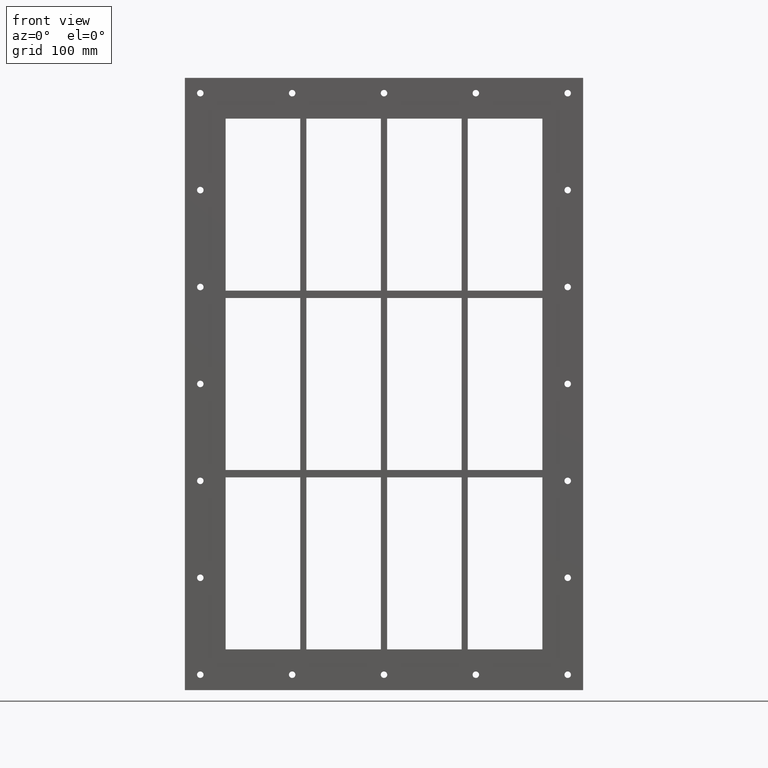
[diagram: clean part render]
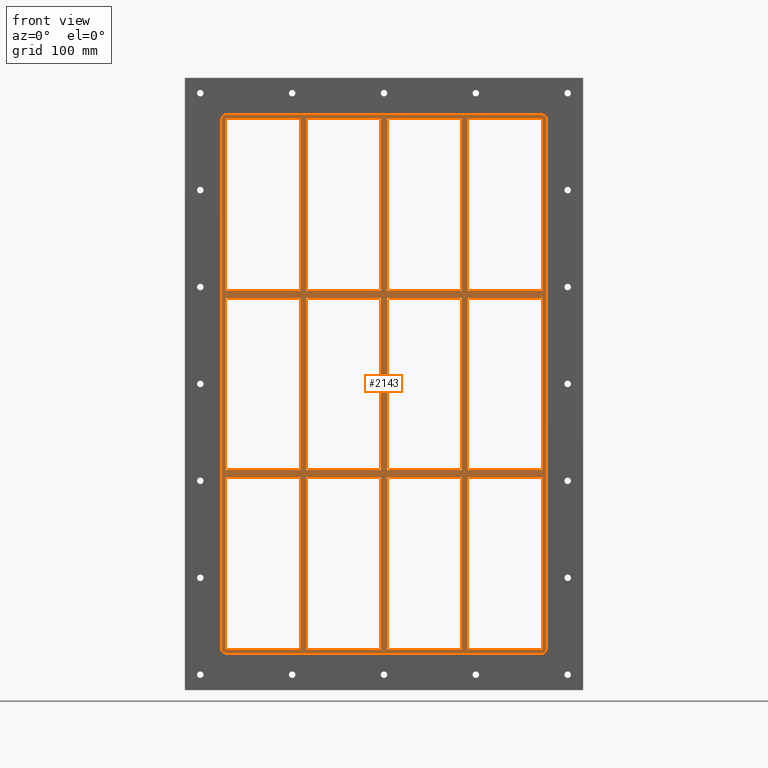
[diagram: same view with one face highlighted and labeled with its STEP entity id]
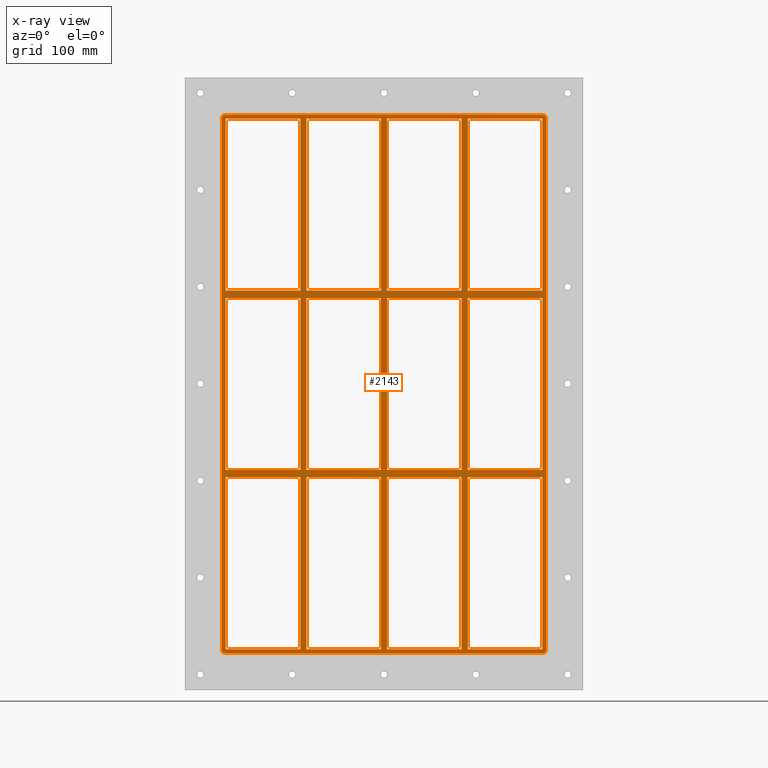
[diagram: x-ray of the same camera — body ghosted, the highlighted face saturated]
A machine part, front view. The second image highlights one B-rep face of the part: STEP entity #2143.
The next image is the same camera in x-ray: the body ghosted, the highlighted face saturated — about 0% of this face is hidden behind the body in this view.
In plain terms, the highlighted planar face has unit normal (0, 1, 0).
Its self-contained STEP definition (entity closure, byte-faithful):
#633=CARTESIAN_POINT('',(-135.50000000000213,-3.0,138.99999999998983));
#634=VERTEX_POINT('',#633);
#643=CARTESIAN_POINT('',(-256.00000000000045,-3.0,138.99999999998983));
#644=VERTEX_POINT('',#643);
#645=CARTESIAN_POINT('',(-135.5000000000021,-3.0,138.9999999999898));
#646=DIRECTION('',(-1.0,0.0,0.0));
#647=VECTOR('',#646,120.49999999999835);
#648=LINE('',#645,#647);
#649=EDGE_CURVE('',#634,#644,#648,.T.);
#673=CARTESIAN_POINT('',(-5.000000000002132,-3.0,138.99999999998983));
#674=VERTEX_POINT('',#673);
#683=CARTESIAN_POINT('',(-125.49999999999272,-3.0,138.99999999998983));
#684=VERTEX_POINT('',#683);
#685=CARTESIAN_POINT('',(-5.00000000000216,-3.0,138.9999999999898));
#686=DIRECTION('',(-1.0,0.0,0.0));
#687=VECTOR('',#686,120.49999999999056);
#688=LINE('',#685,#687);
#689=EDGE_CURVE('',#674,#684,#688,.T.);
#715=CARTESIAN_POINT('',(135.50000000000728,-3.0,138.9999999999898));
#716=VERTEX_POINT('',#715);
#731=CARTESIAN_POINT('',(256.00000000000364,-3.0,138.9999999999898));
#732=VERTEX_POINT('',#731);
#739=CARTESIAN_POINT('',(256.00000000000364,-3.0,138.9999999999898));
#740=DIRECTION('',(-1.0,0.0,0.0));
#741=VECTOR('',#740,120.49999999999636);
#742=LINE('',#739,#741);
#743=EDGE_CURVE('',#732,#716,#742,.T.);
#753=CARTESIAN_POINT('',(125.4999999999979,-3.0,138.9999999999898));
#754=VERTEX_POINT('',#753);
#763=CARTESIAN_POINT('',(5.000000000007283,-3.0,138.9999999999898));
#764=VERTEX_POINT('',#763);
#765=CARTESIAN_POINT('',(125.4999999999979,-3.0,138.9999999999898));
#766=DIRECTION('',(-1.0,0.0,0.0));
#767=VECTOR('',#766,120.49999999999062);
#768=LINE('',#765,#767);
#769=EDGE_CURVE('',#754,#764,#768,.T.);
#795=CARTESIAN_POINT('',(-135.50000000000213,-3.0,151.0));
#796=VERTEX_POINT('',#795);
#811=CARTESIAN_POINT('',(-256.00000000000045,-3.0,150.99999999999994));
#812=VERTEX_POINT('',#811);
#819=CARTESIAN_POINT('',(-256.00000000000045,-3.0,150.99999999999994));
#820=DIRECTION('',(1.0,0.0,0.0));
#821=VECTOR('',#820,120.49999999999832);
#822=LINE('',#819,#821);
#823=EDGE_CURVE('',#812,#796,#822,.T.);
#833=CARTESIAN_POINT('',(135.50000000000728,-3.0,151.00000000000017));
#834=VERTEX_POINT('',#833);
#843=CARTESIAN_POINT('',(256.00000000000017,-3.0,151.00000000000023));
#844=VERTEX_POINT('',#843);
#845=CARTESIAN_POINT('',(135.50000000000728,-3.0,151.00000000000017));
#846=DIRECTION('',(1.0,0.0,0.0));
#847=VECTOR('',#846,120.49999999999284);
#848=LINE('',#845,#847);
#849=EDGE_CURVE('',#834,#844,#848,.T.);
#875=CARTESIAN_POINT('',(-5.000000000002132,-3.0,151.00000000000009));
#876=VERTEX_POINT('',#875);
#891=CARTESIAN_POINT('',(-125.49999999999272,-3.0,151.0));
#892=VERTEX_POINT('',#891);
#899=CARTESIAN_POINT('',(-125.49999999999272,-3.0,151.00000000000003));
#900=DIRECTION('',(1.0,0.0,0.0));
#901=VECTOR('',#900,120.49999999999056);
#902=LINE('',#899,#901);
#903=EDGE_CURVE('',#892,#876,#902,.T.);
#915=CARTESIAN_POINT('',(125.49999999999791,-3.0,151.00000000000017));
#916=VERTEX_POINT('',#915);
#931=CARTESIAN_POINT('',(5.000000000007283,-3.0,151.00000000000009));
#932=VERTEX_POINT('',#931);
#939=CARTESIAN_POINT('',(5.000000000007276,-3.0,151.00000000000009));
#940=DIRECTION('',(1.0,0.0,0.0));
#941=VECTOR('',#940,120.49999999999062);
#942=LINE('',#939,#941);
#943=EDGE_CURVE('',#932,#916,#942,.T.);
#962=CARTESIAN_POINT('',(-256.0,-3.0,429.00000000000006));
#963=VERTEX_POINT('',#962);
#970=CARTESIAN_POINT('',(-256.0,-3.0,150.99999999999997));
#971=DIRECTION('',(0.0,0.0,1.0));
#972=VECTOR('',#971,278.00000000000011);
#973=LINE('',#970,#972);
#974=EDGE_CURVE('',#812,#963,#973,.T.);
#993=CARTESIAN_POINT('',(256.00000000000017,-3.0,-138.99999999999977));
#994=VERTEX_POINT('',#993);
#1001=CARTESIAN_POINT('',(256.0,-3.0,138.99999999998983));
#1002=DIRECTION('',(0.0,0.0,-1.0));
#1003=VECTOR('',#1002,277.99999999998954);
#1004=LINE('',#1001,#1003);
#1005=EDGE_CURVE('',#732,#994,#1004,.T.);
#1016=CARTESIAN_POINT('',(256.0,-3.0,429.00000000000006));
#1017=VERTEX_POINT('',#1016);
#1018=CARTESIAN_POINT('',(256.0,-3.0,429.00000000000006));
#1019=DIRECTION('',(0.0,0.0,-1.0));
#1020=VECTOR('',#1019,277.99999999999983);
#1021=LINE('',#1018,#1020);
#1022=EDGE_CURVE('',#1017,#844,#1021,.T.);
#1047=CARTESIAN_POINT('',(125.49999999999784,-3.0,429.00000000000006));
#1048=VERTEX_POINT('',#1047);
#1049=CARTESIAN_POINT('',(125.49999999999788,-3.0,151.00000000000017));
#1050=DIRECTION('',(0.0,0.0,1.0));
#1051=VECTOR('',#1050,277.99999999999989);
#1052=LINE('',#1049,#1051);
#1053=EDGE_CURVE('',#916,#1048,#1052,.T.);
#1086=CARTESIAN_POINT('',(135.50000000000728,-3.0,429.00000000000006));
#1087=VERTEX_POINT('',#1086);
#1094=CARTESIAN_POINT('',(135.50000000000728,-3.0,429.00000000000006));
#1095=DIRECTION('',(0.0,0.0,-1.0));
#1096=VECTOR('',#1095,277.99999999999989);
#1097=LINE('',#1094,#1096);
#1098=EDGE_CURVE('',#1087,#834,#1097,.T.);
#1109=CARTESIAN_POINT('',(-5.000000000002167,-3.0,429.00000000000006));
#1110=VERTEX_POINT('',#1109);
#1111=CARTESIAN_POINT('',(-5.000000000002121,-3.0,151.00000000000006));
#1112=DIRECTION('',(0.0,0.0,1.0));
#1113=VECTOR('',#1112,278.0);
#1114=LINE('',#1111,#1113);
#1115=EDGE_CURVE('',#876,#1110,#1114,.T.);
#1148=CARTESIAN_POINT('',(5.000000000007283,-3.0,429.00000000000006));
#1149=VERTEX_POINT('',#1148);
#1156=CARTESIAN_POINT('',(5.000000000007283,-3.0,429.00000000000006));
#1157=DIRECTION('',(0.0,0.0,-1.0));
#1158=VECTOR('',#1157,278.0);
#1159=LINE('',#1156,#1158);
#1160=EDGE_CURVE('',#1149,#932,#1159,.T.);
#1171=CARTESIAN_POINT('',(-135.50000000000216,-3.0,429.00000000000006));
#1172=VERTEX_POINT('',#1171);
#1173=CARTESIAN_POINT('',(-135.50000000000213,-3.0,151.00000000000006));
#1174=DIRECTION('',(0.0,0.0,1.0));
#1175=VECTOR('',#1174,278.0);
#1176=LINE('',#1173,#1175);
#1177=EDGE_CURVE('',#796,#1172,#1176,.T.);
#1210=CARTESIAN_POINT('',(-135.50000000000207,-3.0,-139.0));
#1211=VERTEX_POINT('',#1210);
#1218=CARTESIAN_POINT('',(-135.5000000000021,-3.0,-139.0));
#1219=DIRECTION('',(0.0,0.0,1.0));
#1220=VECTOR('',#1219,277.99999999998983);
#1221=LINE('',#1218,#1220);
#1222=EDGE_CURVE('',#1211,#634,#1221,.T.);
#1241=CARTESIAN_POINT('',(-125.49999999999272,-3.0,429.00000000000006));
#1242=VERTEX_POINT('',#1241);
#1249=CARTESIAN_POINT('',(-125.49999999999272,-3.0,429.00000000000006));
#1250=DIRECTION('',(0.0,0.0,-1.0));
#1251=VECTOR('',#1250,278.00000000000006);
#1252=LINE('',#1249,#1251);
#1253=EDGE_CURVE('',#1242,#892,#1252,.T.);
#1607=CARTESIAN_POINT('',(125.49999999999793,-3.0,-138.99999999999983));
#1608=VERTEX_POINT('',#1607);
#1615=CARTESIAN_POINT('',(125.49999999999794,-3.0,-138.99999999999983));
#1616=DIRECTION('',(0.0,0.0,1.0));
#1617=VECTOR('',#1616,277.99999999998965);
#1618=LINE('',#1615,#1617);
#1619=EDGE_CURVE('',#1608,#754,#1618,.T.);
#1629=CARTESIAN_POINT('',(125.49999999999793,-3.0,-151.00000000001017));
#1630=VERTEX_POINT('',#1629);
#1638=CARTESIAN_POINT('',(125.49999999999798,-3.0,-429.00000000000006));
#1639=VERTEX_POINT('',#1638);
#1646=CARTESIAN_POINT('',(125.49999999999798,-3.0,-429.00000000000006));
#1647=DIRECTION('',(0.0,0.0,1.0));
#1648=VECTOR('',#1647,277.99999999998988);
#1649=LINE('',#1646,#1648);
#1650=EDGE_CURVE('',#1639,#1630,#1649,.T.);
#1661=CARTESIAN_POINT('',(135.50000000000728,-3.0,-138.99999999999983));
#1662=VERTEX_POINT('',#1661);
#1663=CARTESIAN_POINT('',(135.50000000000728,-3.0,138.99999999998983));
#1664=DIRECTION('',(0.0,0.0,-1.0));
#1665=VECTOR('',#1664,277.99999999998965);
#1666=LINE('',#1663,#1665);
#1667=EDGE_CURVE('',#716,#1662,#1666,.T.);
#1684=CARTESIAN_POINT('',(135.50000000000728,-3.0,-151.00000000001017));
#1685=VERTEX_POINT('',#1684);
#1692=CARTESIAN_POINT('',(135.50000000000728,-3.0,-428.99999999998658));
#1693=VERTEX_POINT('',#1692);
#1694=CARTESIAN_POINT('',(135.50000000000728,-3.0,-151.00000000001017));
#1695=DIRECTION('',(0.0,0.0,-1.0));
#1696=VECTOR('',#1695,277.99999999997635);
#1697=LINE('',#1694,#1696);
#1698=EDGE_CURVE('',#1685,#1693,#1697,.T.);
#1717=CARTESIAN_POINT('',(-5.000000000002073,-3.0,-138.99999999999991));
#1718=VERTEX_POINT('',#1717);
#1725=CARTESIAN_POINT('',(-5.000000000002073,-3.0,-138.99999999999994));
#1726=DIRECTION('',(0.0,0.0,1.0));
#1727=VECTOR('',#1726,277.99999999998977);
#1728=LINE('',#1725,#1727);
#1729=EDGE_CURVE('',#1718,#674,#1728,.T.);
#1739=CARTESIAN_POINT('',(-5.00000000000207,-3.0,-151.00000000001017));
#1740=VERTEX_POINT('',#1739);
#1748=CARTESIAN_POINT('',(-5.000000000002025,-3.0,-429.00000000000006));
#1749=VERTEX_POINT('',#1748);
#1756=CARTESIAN_POINT('',(-5.000000000002025,-3.0,-429.00000000000006));
#1757=DIRECTION('',(0.0,0.0,1.0));
#1758=VECTOR('',#1757,277.99999999998988);
#1759=LINE('',#1756,#1758);
#1760=EDGE_CURVE('',#1749,#1740,#1759,.T.);
#1771=CARTESIAN_POINT('',(5.000000000007283,-3.0,-138.99999999999991));
#1772=VERTEX_POINT('',#1771);
#1773=CARTESIAN_POINT('',(5.000000000007283,-3.0,138.99999999998983));
#1774=DIRECTION('',(0.0,0.0,-1.0));
#1775=VECTOR('',#1774,277.99999999998977);
#1776=LINE('',#1773,#1775);
#1777=EDGE_CURVE('',#764,#1772,#1776,.T.);
#1794=CARTESIAN_POINT('',(5.000000000007283,-3.0,-151.00000000001017));
#1795=VERTEX_POINT('',#1794);
#1802=CARTESIAN_POINT('',(5.000000000007283,-3.0,-428.99999999998658));
#1803=VERTEX_POINT('',#1802);
#1804=CARTESIAN_POINT('',(5.000000000007283,-3.0,-151.00000000001017));
#1805=DIRECTION('',(0.0,0.0,-1.0));
#1806=VECTOR('',#1805,277.99999999997635);
#1807=LINE('',#1804,#1806);
#1808=EDGE_CURVE('',#1795,#1803,#1807,.T.);
#1827=CARTESIAN_POINT('',(-125.49999999999272,-3.0,-428.99999999998658));
#1828=VERTEX_POINT('',#1827);
#1835=CARTESIAN_POINT('',(-5.000000000002046,-3.0,-429.00000000000006));
#1836=DIRECTION('',(-1.0,0.0,0.0));
#1837=VECTOR('',#1836,120.49999999999068);
#1838=LINE('',#1835,#1837);
#1839=EDGE_CURVE('',#1749,#1828,#1838,.T.);
#1852=CARTESIAN_POINT('',(125.49999999999798,-3.0,-429.00000000000006));
#1853=DIRECTION('',(-1.0,0.0,0.0));
#1854=VECTOR('',#1853,120.49999999999071);
#1855=LINE('',#1852,#1854);
#1856=EDGE_CURVE('',#1639,#1803,#1855,.T.);
#1867=CARTESIAN_POINT('',(256.0,-3.0,-429.00000000000006));
#1868=VERTEX_POINT('',#1867);
#1869=CARTESIAN_POINT('',(256.0,-3.0,-429.00000000000006));
#1870=DIRECTION('',(-1.0,0.0,0.0));
#1871=VECTOR('',#1870,120.49999999999272);
#1872=LINE('',#1869,#1871);
#1873=EDGE_CURVE('',#1868,#1693,#1872,.T.);
#1885=CARTESIAN_POINT('',(0.0,-3.0,0.0));
#1886=DIRECTION('',(0.0,1.0,0.0));
#1887=DIRECTION('',(0.0,0.0,1.0));
#1888=AXIS2_PLACEMENT_3D('',#1885,#1886,#1887);
#1889=PLANE('',#1888);
#1890=CARTESIAN_POINT('',(262.0,-3.0,-429.0));
#1891=VERTEX_POINT('',#1890);
#1892=CARTESIAN_POINT('',(256.0,-3.0,-435.00000000000006));
#1893=VERTEX_POINT('',#1892);
#1894=CARTESIAN_POINT('',(256.0,-3.0,-429.00000000000006));
#1895=DIRECTION('',(0.0,1.0,0.0));
#1896=DIRECTION('',(0.707106781186552,0.0,-0.707106781186543));
#1897=AXIS2_PLACEMENT_3D('',#1894,#1895,#1896);
#1898=CIRCLE('',#1897,6.000000000000001);
#1899=EDGE_CURVE('',#1891,#1893,#1898,.T.);
#1900=ORIENTED_EDGE('',*,*,#1899,.F.);
#1901=CARTESIAN_POINT('',(262.0,-3.0,429.00000000000006));
#1902=VERTEX_POINT('',#1901);
#1903=CARTESIAN_POINT('',(262.0,-3.0,-428.99999999999994));
#1904=DIRECTION('',(0.0,0.0,1.0));
#1905=VECTOR('',#1904,858.0);
#1906=LINE('',#1903,#1905);
#1907=EDGE_CURVE('',#1891,#1902,#1906,.T.);
#1908=ORIENTED_EDGE('',*,*,#1907,.T.);
#1909=CARTESIAN_POINT('',(256.0,-3.0,435.00000000000006));
#1910=VERTEX_POINT('',#1909);
#1911=CARTESIAN_POINT('',(256.0,-3.0,429.00000000000006));
#1912=DIRECTION('',(0.0,1.0,0.0));
#1913=DIRECTION('',(0.707106781186552,0.0,0.707106781186543));
#1914=AXIS2_PLACEMENT_3D('',#1911,#1912,#1913);
#1915=CIRCLE('',#1914,6.000000000000001);
#1916=EDGE_CURVE('',#1910,#1902,#1915,.T.);
#1917=ORIENTED_EDGE('',*,*,#1916,.F.);
#1918=CARTESIAN_POINT('',(-256.0,-3.0,435.00000000000006));
#1919=VERTEX_POINT('',#1918);
#1920=CARTESIAN_POINT('',(256.0,-3.0,435.00000000000006));
#1921=DIRECTION('',(-1.0,0.0,0.0));
#1922=VECTOR('',#1921,512.0);
#1923=LINE('',#1920,#1922);
#1924=EDGE_CURVE('',#1910,#1919,#1923,.T.);
#1925=ORIENTED_EDGE('',*,*,#1924,.T.);
#1926=CARTESIAN_POINT('',(-262.0,-3.0,429.0));
#1927=VERTEX_POINT('',#1926);
#1928=CARTESIAN_POINT('',(-256.0,-3.0,429.00000000000006));
#1929=DIRECTION('',(0.0,1.0,0.0));
#1930=DIRECTION('',(-0.707106781186552,0.0,0.707106781186543));
#1931=AXIS2_PLACEMENT_3D('',#1928,#1929,#1930);
#1932=CIRCLE('',#1931,6.000000000000001);
#1933=EDGE_CURVE('',#1927,#1919,#1932,.T.);
#1934=ORIENTED_EDGE('',*,*,#1933,.F.);
#1935=CARTESIAN_POINT('',(-262.0,-3.0,-429.00000000000006));
#1936=VERTEX_POINT('',#1935);
#1937=CARTESIAN_POINT('',(-262.0,-3.0,428.99999999999994));
#1938=DIRECTION('',(0.0,0.0,-1.0));
#1939=VECTOR('',#1938,858.0);
#1940=LINE('',#1937,#1939);
#1941=EDGE_CURVE('',#1927,#1936,#1940,.T.);
#1942=ORIENTED_EDGE('',*,*,#1941,.T.);
#1943=CARTESIAN_POINT('',(-256.0,-3.0,-435.00000000000006));
#1944=VERTEX_POINT('',#1943);
#1945=CARTESIAN_POINT('',(-256.0,-3.0,-429.00000000000006));
#1946=DIRECTION('',(0.0,1.0,0.0));
#1947=DIRECTION('',(-0.707106781186552,0.0,-0.707106781186543));
#1948=AXIS2_PLACEMENT_3D('',#1945,#1946,#1947);
#1949=CIRCLE('',#1948,6.000000000000001);
#1950=EDGE_CURVE('',#1944,#1936,#1949,.T.);
#1951=ORIENTED_EDGE('',*,*,#1950,.F.);
#1952=CARTESIAN_POINT('',(-256.0,-3.0,-435.00000000000006));
#1953=DIRECTION('',(1.0,0.0,0.0));
#1954=VECTOR('',#1953,512.0);
#1955=LINE('',#1952,#1954);
#1956=EDGE_CURVE('',#1944,#1893,#1955,.T.);
#1957=ORIENTED_EDGE('',*,*,#1956,.T.);
#1958=EDGE_LOOP('',(#1900,#1908,#1917,#1925,#1934,#1942,#1951,#1957));
#1959=FACE_OUTER_BOUND('',#1958,.T.);
#1960=ORIENTED_EDGE('',*,*,#974,.T.);
#1961=CARTESIAN_POINT('',(-256.0,-3.0,429.00000000000006));
#1962=DIRECTION('',(1.0,0.0,0.0));
#1963=VECTOR('',#1962,120.49999999999784);
#1964=LINE('',#1961,#1963);
#1965=EDGE_CURVE('',#963,#1172,#1964,.T.);
#1966=ORIENTED_EDGE('',*,*,#1965,.T.);
#1967=ORIENTED_EDGE('',*,*,#1177,.F.);
#1968=ORIENTED_EDGE('',*,*,#823,.F.);
#1969=EDGE_LOOP('',(#1960,#1966,#1967,#1968));
#1970=FACE_BOUND('',#1969,.T.);
#1971=ORIENTED_EDGE('',*,*,#1005,.T.);
#1972=CARTESIAN_POINT('',(135.50000000000728,-3.0,-138.99999999999983));
#1973=DIRECTION('',(1.0,0.0,0.0));
#1974=VECTOR('',#1973,120.49999999999284);
#1975=LINE('',#1972,#1974);
#1976=EDGE_CURVE('',#1662,#994,#1975,.T.);
#1977=ORIENTED_EDGE('',*,*,#1976,.F.);
#1978=ORIENTED_EDGE('',*,*,#1667,.F.);
#1979=ORIENTED_EDGE('',*,*,#743,.F.);
#1980=EDGE_LOOP('',(#1971,#1977,#1978,#1979));
#1981=FACE_BOUND('',#1980,.T.);
#1982=ORIENTED_EDGE('',*,*,#1619,.F.);
#1983=CARTESIAN_POINT('',(5.000000000007276,-3.0,-138.99999999999991));
#1984=DIRECTION('',(1.0,0.0,0.0));
#1985=VECTOR('',#1984,120.49999999999062);
#1986=LINE('',#1983,#1985);
#1987=EDGE_CURVE('',#1772,#1608,#1986,.T.);
#1988=ORIENTED_EDGE('',*,*,#1987,.F.);
#1989=ORIENTED_EDGE('',*,*,#1777,.F.);
#1990=ORIENTED_EDGE('',*,*,#769,.F.);
#1991=EDGE_LOOP('',(#1982,#1988,#1989,#1990));
#1992=FACE_BOUND('',#1991,.T.);
#1993=ORIENTED_EDGE('',*,*,#1729,.F.);
#1994=CARTESIAN_POINT('',(-125.49999999999272,-3.0,-139.0));
#1995=VERTEX_POINT('',#1994);
#1996=CARTESIAN_POINT('',(-125.49999999999272,-3.0,-138.99999999999997));
#1997=DIRECTION('',(1.0,0.0,0.0));
#1998=VECTOR('',#1997,120.49999999999065);
#1999=LINE('',#1996,#1998);
#2000=EDGE_CURVE('',#1995,#1718,#1999,.T.);
#2001=ORIENTED_EDGE('',*,*,#2000,.F.);
#2002=CARTESIAN_POINT('',(-125.49999999999272,-3.0,138.99999999998983));
#2003=DIRECTION('',(0.0,0.0,-1.0));
#2004=VECTOR('',#2003,277.99999999998977);
#2005=LINE('',#2002,#2004);
#2006=EDGE_CURVE('',#684,#1995,#2005,.T.);
#2007=ORIENTED_EDGE('',*,*,#2006,.F.);
#2008=ORIENTED_EDGE('',*,*,#689,.F.);
#2009=EDGE_LOOP('',(#1993,#2001,#2007,#2008));
#2010=FACE_BOUND('',#2009,.T.);
#2011=ORIENTED_EDGE('',*,*,#943,.F.);
#2012=ORIENTED_EDGE('',*,*,#1160,.F.);
#2013=CARTESIAN_POINT('',(5.000000000007276,-3.0,429.00000000000006));
#2014=DIRECTION('',(1.0,0.0,0.0));
#2015=VECTOR('',#2014,120.49999999999056);
#2016=LINE('',#2013,#2015);
#2017=EDGE_CURVE('',#1149,#1048,#2016,.T.);
#2018=ORIENTED_EDGE('',*,*,#2017,.T.);
#2019=ORIENTED_EDGE('',*,*,#1053,.F.);
#2020=EDGE_LOOP('',(#2011,#2012,#2018,#2019));
#2021=FACE_BOUND('',#2020,.T.);
#2022=ORIENTED_EDGE('',*,*,#903,.F.);
#2023=ORIENTED_EDGE('',*,*,#1253,.F.);
#2024=CARTESIAN_POINT('',(-125.49999999999272,-3.0,429.00000000000006));
#2025=DIRECTION('',(1.0,0.0,0.0));
#2026=VECTOR('',#2025,120.49999999999056);
#2027=LINE('',#2024,#2026);
#2028=EDGE_CURVE('',#1242,#1110,#2027,.T.);
#2029=ORIENTED_EDGE('',*,*,#2028,.T.);
#2030=ORIENTED_EDGE('',*,*,#1115,.F.);
#2031=EDGE_LOOP('',(#2022,#2023,#2029,#2030));
#2032=FACE_BOUND('',#2031,.T.);
#2033=ORIENTED_EDGE('',*,*,#649,.F.);
#2034=ORIENTED_EDGE('',*,*,#1222,.F.);
#2035=CARTESIAN_POINT('',(-256.00000000000045,-3.0,-139.00000000000006));
#2036=VERTEX_POINT('',#2035);
#2037=CARTESIAN_POINT('',(-256.00000000000045,-3.0,-139.00000000000006));
#2038=DIRECTION('',(1.0,0.0,0.0));
#2039=VECTOR('',#2038,120.49999999999835);
#2040=LINE('',#2037,#2039);
#2041=EDGE_CURVE('',#2036,#1211,#2040,.T.);
#2042=ORIENTED_EDGE('',*,*,#2041,.F.);
#2043=CARTESIAN_POINT('',(-256.0,-3.0,-139.00000000000006));
#2044=DIRECTION('',(0.0,0.0,1.0));
#2045=VECTOR('',#2044,277.99999999998988);
#2046=LINE('',#2043,#2045);
#2047=EDGE_CURVE('',#2036,#644,#2046,.T.);
#2048=ORIENTED_EDGE('',*,*,#2047,.T.);
#2049=EDGE_LOOP('',(#2033,#2034,#2042,#2048));
#2050=FACE_BOUND('',#2049,.T.);
#2051=ORIENTED_EDGE('',*,*,#849,.F.);
#2052=ORIENTED_EDGE('',*,*,#1098,.F.);
#2053=CARTESIAN_POINT('',(135.50000000000728,-3.0,429.00000000000006));
#2054=DIRECTION('',(1.0,0.0,0.0));
#2055=VECTOR('',#2054,120.49999999999278);
#2056=LINE('',#2053,#2055);
#2057=EDGE_CURVE('',#1087,#1017,#2056,.T.);
#2058=ORIENTED_EDGE('',*,*,#2057,.T.);
#2059=ORIENTED_EDGE('',*,*,#1022,.T.);
#2060=EDGE_LOOP('',(#2051,#2052,#2058,#2059));
#2061=FACE_BOUND('',#2060,.T.);
#2062=ORIENTED_EDGE('',*,*,#1856,.T.);
#2063=ORIENTED_EDGE('',*,*,#1808,.F.);
#2064=CARTESIAN_POINT('',(125.49999999999793,-3.0,-151.0000000000102));
#2065=DIRECTION('',(-1.0,0.0,0.0));
#2066=VECTOR('',#2065,120.49999999999065);
#2067=LINE('',#2064,#2066);
#2068=EDGE_CURVE('',#1630,#1795,#2067,.T.);
#2069=ORIENTED_EDGE('',*,*,#2068,.F.);
#2070=ORIENTED_EDGE('',*,*,#1650,.F.);
#2071=EDGE_LOOP('',(#2062,#2063,#2069,#2070));
#2072=FACE_BOUND('',#2071,.T.);
#2073=ORIENTED_EDGE('',*,*,#1839,.T.);
#2074=CARTESIAN_POINT('',(-125.49999999999272,-3.0,-151.00000000001017));
#2075=VERTEX_POINT('',#2074);
#2076=CARTESIAN_POINT('',(-125.49999999999272,-3.0,-151.00000000001017));
#2077=DIRECTION('',(0.0,0.0,-1.0));
#2078=VECTOR('',#2077,277.99999999997635);
#2079=LINE('',#2076,#2078);
#2080=EDGE_CURVE('',#2075,#1828,#2079,.T.);
#2081=ORIENTED_EDGE('',*,*,#2080,.F.);
#2082=CARTESIAN_POINT('',(-5.000000000002046,-3.0,-151.0000000000102));
#2083=DIRECTION('',(-1.0,0.0,0.0));
#2084=VECTOR('',#2083,120.49999999999068);
#2085=LINE('',#2082,#2084);
#2086=EDGE_CURVE('',#1740,#2075,#2085,.T.);
#2087=ORIENTED_EDGE('',*,*,#2086,.F.);
#2088=ORIENTED_EDGE('',*,*,#1760,.F.);
#2089=EDGE_LOOP('',(#2073,#2081,#2087,#2088));
#2090=FACE_BOUND('',#2089,.T.);
#2091=ORIENTED_EDGE('',*,*,#1698,.F.);
#2092=CARTESIAN_POINT('',(256.00000000000364,-3.0,-151.0000000000102));
#2093=VERTEX_POINT('',#2092);
#2094=CARTESIAN_POINT('',(256.00000000000364,-3.0,-151.0000000000102));
#2095=DIRECTION('',(-1.0,0.0,0.0));
#2096=VECTOR('',#2095,120.49999999999636);
#2097=LINE('',#2094,#2096);
#2098=EDGE_CURVE('',#2093,#1685,#2097,.T.);
#2099=ORIENTED_EDGE('',*,*,#2098,.F.);
#2100=CARTESIAN_POINT('',(256.0,-3.0,-151.0000000000102));
#2101=DIRECTION('',(0.0,0.0,-1.0));
#2102=VECTOR('',#2101,277.99999999998988);
#2103=LINE('',#2100,#2102);
#2104=EDGE_CURVE('',#2093,#1868,#2103,.T.);
#2105=ORIENTED_EDGE('',*,*,#2104,.T.);
#2106=ORIENTED_EDGE('',*,*,#1873,.T.);
#2107=EDGE_LOOP('',(#2091,#2099,#2105,#2106));
#2108=FACE_BOUND('',#2107,.T.);
#2109=CARTESIAN_POINT('',(-135.5000000000021,-3.0,-151.00000000001017));
#2110=VERTEX_POINT('',#2109);
#2111=CARTESIAN_POINT('',(-256.00000000000045,-3.0,-151.00000000001017));
#2112=VERTEX_POINT('',#2111);
#2113=CARTESIAN_POINT('',(-135.5000000000021,-3.0,-151.0000000000102));
#2114=DIRECTION('',(-1.0,0.0,0.0));
#2115=VECTOR('',#2114,120.49999999999835);
#2116=LINE('',#2113,#2115);
#2117=EDGE_CURVE('',#2110,#2112,#2116,.T.);
#2118=ORIENTED_EDGE('',*,*,#2117,.F.);
#2119=CARTESIAN_POINT('',(-135.50000000000205,-3.0,-429.00000000000006));
#2120=VERTEX_POINT('',#2119);
#2121=CARTESIAN_POINT('',(-135.50000000000205,-3.0,-429.00000000000006));
#2122=DIRECTION('',(0.0,0.0,1.0));
#2123=VECTOR('',#2122,277.99999999998988);
#2124=LINE('',#2121,#2123);
#2125=EDGE_CURVE('',#2120,#2110,#2124,.T.);
#2126=ORIENTED_EDGE('',*,*,#2125,.F.);
#2127=CARTESIAN_POINT('',(-256.0,-3.0,-429.00000000000006));
#2128=VERTEX_POINT('',#2127);
#2129=CARTESIAN_POINT('',(-135.50000000000205,-3.0,-429.00000000000006));
#2130=DIRECTION('',(-1.0,0.0,0.0));
#2131=VECTOR('',#2130,120.49999999999801);
#2132=LINE('',#2129,#2131);
#2133=EDGE_CURVE('',#2120,#2128,#2132,.T.);
#2134=ORIENTED_EDGE('',*,*,#2133,.T.);
#2135=CARTESIAN_POINT('',(-256.0,-3.0,-429.00000000000006));
#2136=DIRECTION('',(0.0,0.0,1.0));
#2137=VECTOR('',#2136,277.99999999998988);
#2138=LINE('',#2135,#2137);
#2139=EDGE_CURVE('',#2128,#2112,#2138,.T.);
#2140=ORIENTED_EDGE('',*,*,#2139,.T.);
#2141=EDGE_LOOP('',(#2118,#2126,#2134,#2140));
#2142=FACE_BOUND('',#2141,.T.);
#2143=ADVANCED_FACE('',(#1959,#1970,#1981,#1992,#2010,#2021,#2032,#2050,#2061,#2072,#2090,#2108,#2142),#1889,.F.);